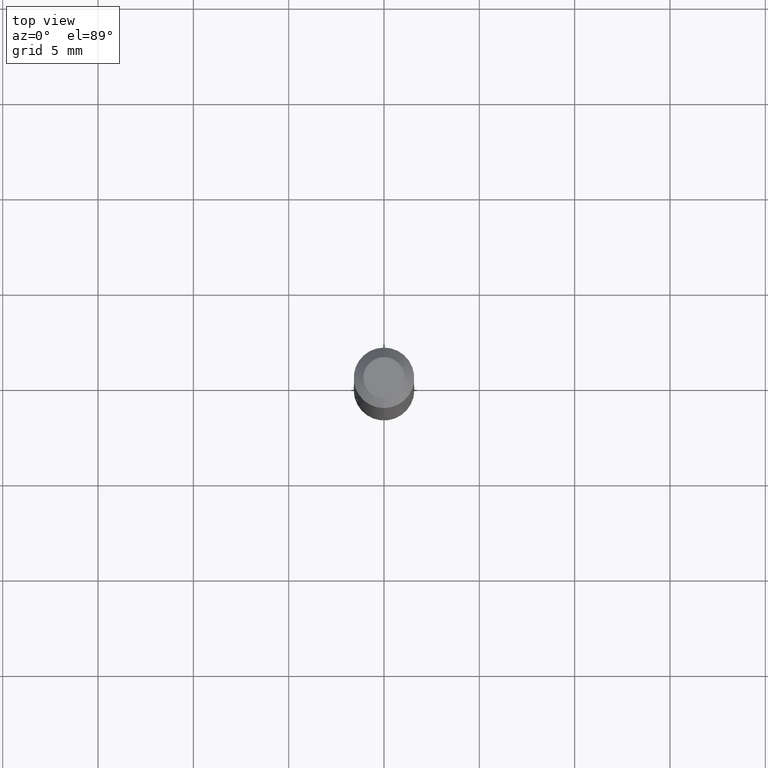
[diagram: clean part render]
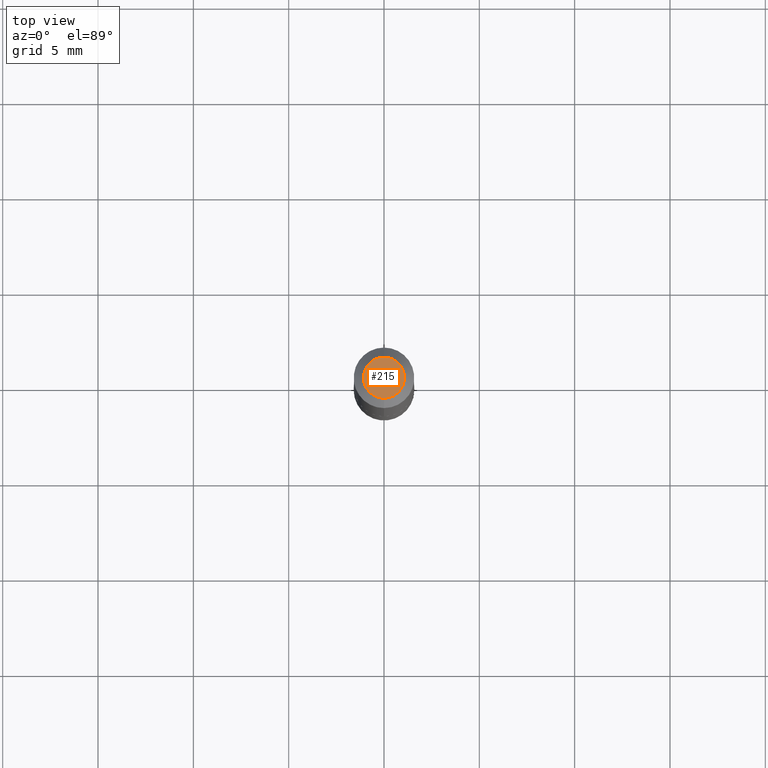
[diagram: same view with one face highlighted and labeled with its STEP entity id]
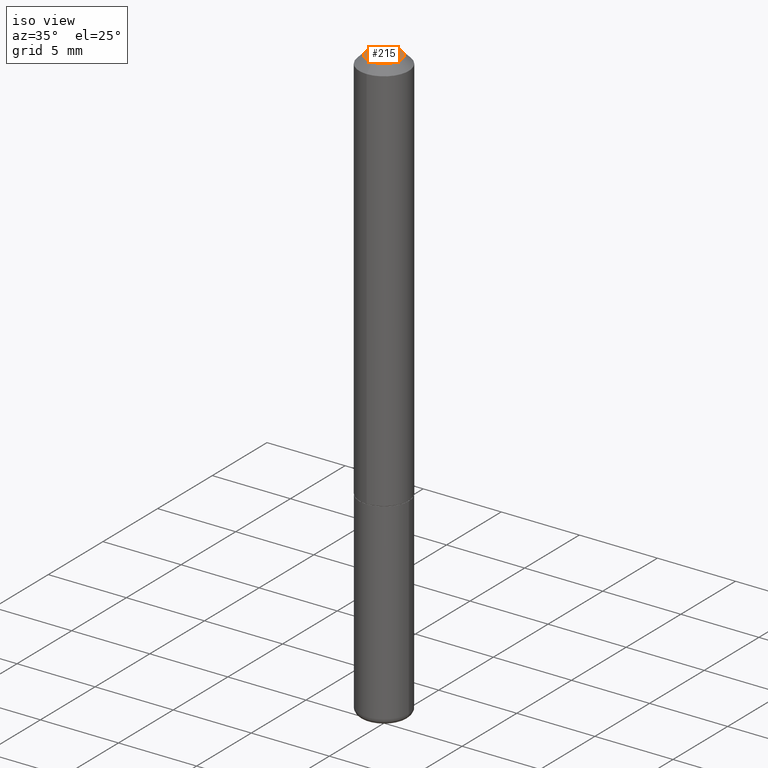
[diagram: same view with one face highlighted and labeled with its STEP entity id]
A machine part, top view. The second image highlights one B-rep face of the part: STEP entity #215.
A second angle (iso view) of the same face is appended — the face is thin or edge-on in the first view.
In plain terms, the highlighted planar face has unit normal (0, -0, -1).
Its self-contained STEP definition (entity closure, byte-faithful):
#2 = CARTESIAN_POINT ( 'NONE',  ( 3.666055405785281740E-16, 0.04249999999999975325, 4.369510515368569678E-17 ) ) ;
#31 = CIRCLE ( 'NONE', #170, 0.04249999999999975325 ) ;
#35 = EDGE_CURVE ( 'NONE', #317, #370, #31, .T. ) ;
#56 = CARTESIAN_POINT ( 'NONE',  ( -3.601761448830040600E-16, -0.04249999999999975325, 3.432238146770115888E-16 ) ) ;
#65 = CIRCLE ( 'NONE', #401, 0.04249999999999975325 ) ;
#86 = FACE_OUTER_BOUND ( 'NONE', #376, .T. ) ;
#118 = ORIENTED_EDGE ( 'NONE', *, *, #35, .T. ) ;
#119 = CARTESIAN_POINT ( 'NONE',  ( 2.967759138016645800E-16, 0.04249999999999975325, -5.303462480398862614E-17 ) ) ;
#126 = AXIS2_PLACEMENT_3D ( 'NONE', #119, #248, #375 ) ;
#170 = AXIS2_PLACEMENT_3D ( 'NONE', #236, #200, #172 ) ;
#172 = DIRECTION ( 'NONE',  ( -6.982962677686265922E-15, -1.000000000000000000, 3.523867170862678095E-15 ) ) ;
#181 = DIRECTION ( 'NONE',  ( -2.422853900557315141E-29, 3.523867170862678489E-15, 1.000000000000000000 ) ) ;
#200 = DIRECTION ( 'NONE',  ( -2.422853900557315141E-29, 3.523867170862678489E-15, 1.000000000000000000 ) ) ;
#210 = PLANE ( 'NONE',  #126 ) ;
#215 = ADVANCED_FACE ( 'NONE', ( #86 ), #210, .F. ) ;
#236 = CARTESIAN_POINT ( 'NONE',  ( -4.687240070556140497E-45, 6.817254396885214509E-31, 1.934594599153486335E-16 ) ) ;
#248 = DIRECTION ( 'NONE',  ( 2.422853900557314861E-29, -3.523867170862678489E-15, -1.000000000000000000 ) ) ;
#252 = ORIENTED_EDGE ( 'NONE', *, *, #262, .T. ) ;
#262 = EDGE_CURVE ( 'NONE', #370, #317, #65, .T. ) ;
#315 = DIRECTION ( 'NONE',  ( -6.982962677686265922E-15, -1.000000000000000000, 3.523867170862678095E-15 ) ) ;
#317 = VERTEX_POINT ( 'NONE', #56 ) ;
#351 = CARTESIAN_POINT ( 'NONE',  ( -4.687240070556140497E-45, 6.817254396885214509E-31, 1.934594599153486335E-16 ) ) ;
#370 = VERTEX_POINT ( 'NONE', #2 ) ;
#375 = DIRECTION ( 'NONE',  ( 6.982962677686265922E-15, 1.000000000000000000, -3.523867170862678489E-15 ) ) ;
#376 = EDGE_LOOP ( 'NONE', ( #252, #118 ) ) ;
#401 = AXIS2_PLACEMENT_3D ( 'NONE', #351, #181, #315 ) ;